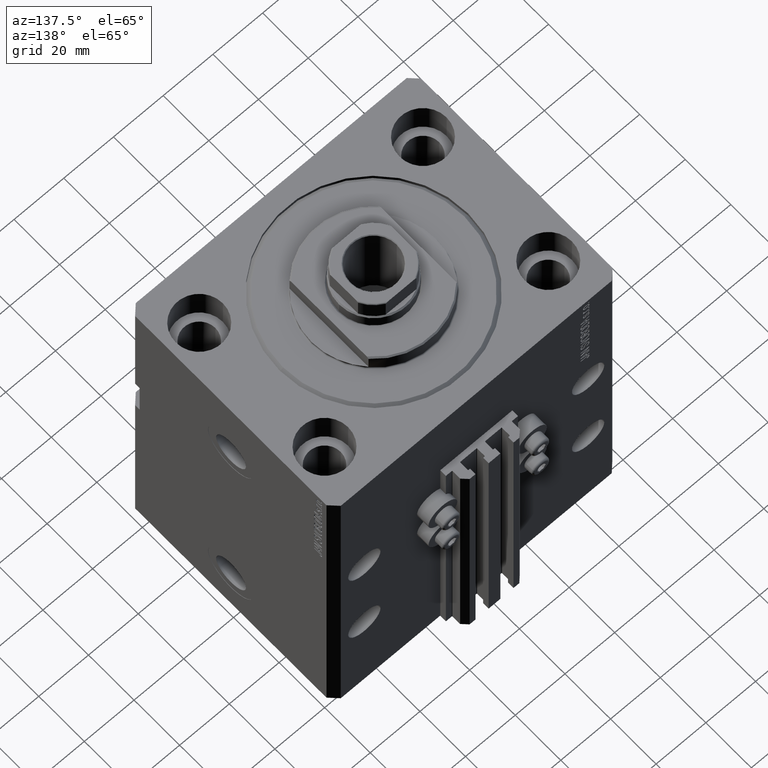
[diagram: clean part render]
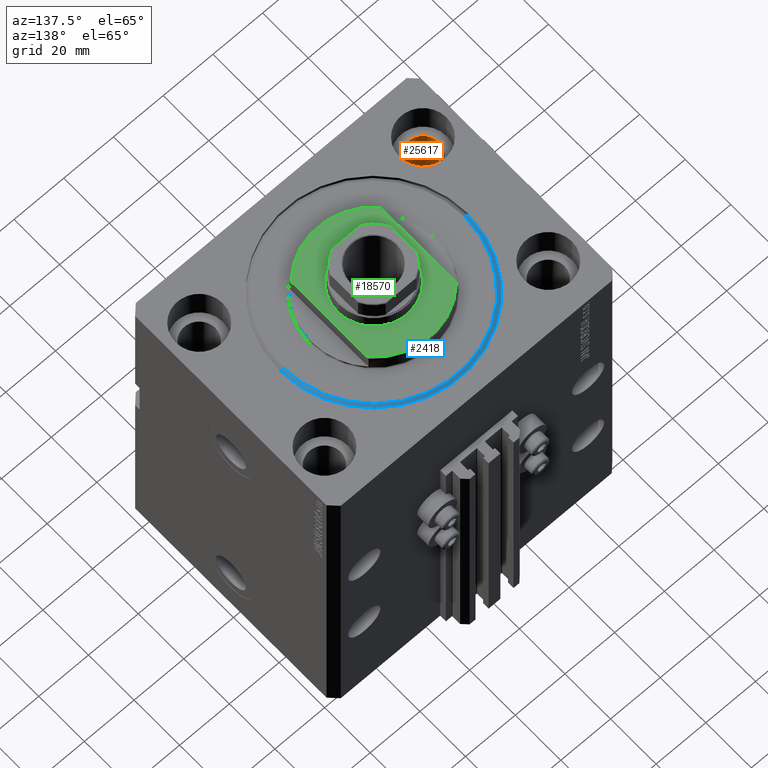
[diagram: same view with three faces highlighted in distinct colors, each labeled with its STEP entity id]
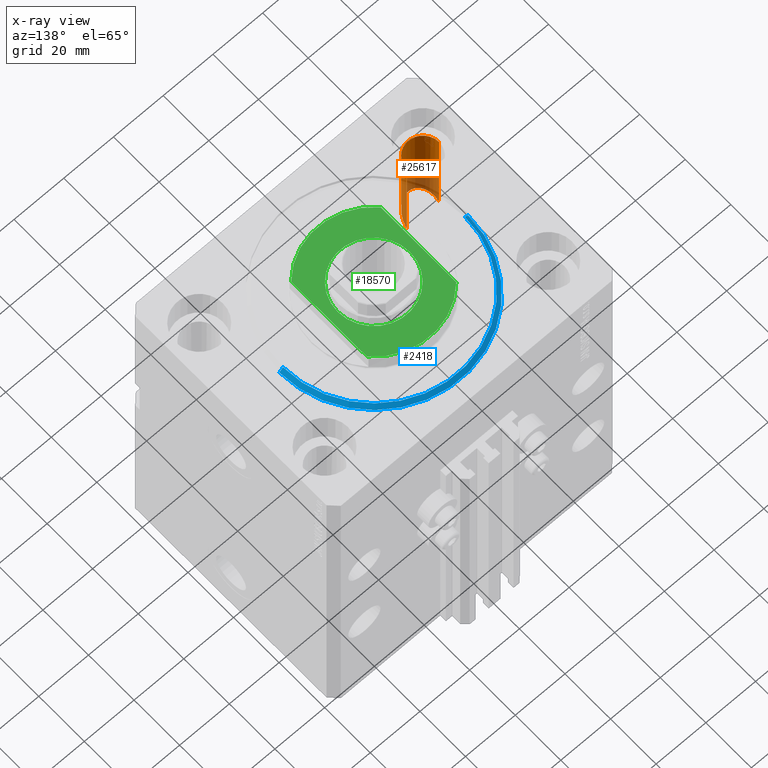
[diagram: x-ray of the same camera — body ghosted, the three highlighted faces saturated]
A machine part, auxiliary view with three faces highlighted in distinct colors.
The next image is the same camera in x-ray (body ghosted, the three faces saturated) — at least one of them is partly hidden behind the body in this view.
Their STEP definitions:

[orange] entity #25617 — the highlighted cylindrical surface (edge-blend (fillet) strip) has radius 6.5 mm, axis along (0, 0, 1).
#442 = VECTOR ( 'NONE', #36382, 1000.000000000000000 ) ;
#1325 = EDGE_CURVE ( 'NONE', #23469, #47725, #9370, .T. ) ;
#4446 = CARTESIAN_POINT ( 'NONE',  ( -51.50000000000000000, -27.49999999999999645, -13.00000000000000000 ) ) ;
#4931 = EDGE_CURVE ( 'NONE', #26999, #36131, #8403, .T. ) ;
#7403 = AXIS2_PLACEMENT_3D ( 'NONE', #21603, #48255, #47518 ) ;
#7873 = CARTESIAN_POINT ( 'NONE',  ( -51.49999999999999289, -27.49999999999999289, -55.00000000000002132 ) ) ;
#8285 = AXIS2_PLACEMENT_3D ( 'NONE', #40901, #49190, #29602 ) ;
#8403 = CIRCLE ( 'NONE', #8285, 6.499999999999999112 ) ;
#9062 = CYLINDRICAL_SURFACE ( 'NONE', #7403, 6.499999999999999112 ) ;
#9128 = LINE ( 'NONE', #36257, #38124 ) ;
#9370 =( BOUNDED_CURVE ( )  B_SPLINE_CURVE ( 3, ( #17068, #47756, #15665, #7873 ),
 .UNSPECIFIED., .F., .F. ) 
 B_SPLINE_CURVE_WITH_KNOTS ( ( 4, 4 ),
 ( 4.712388980384689674, 7.853981633974482790 ),
 .UNSPECIFIED. ) 
 CURVE ( )  GEOMETRIC_REPRESENTATION_ITEM ( )  RATIONAL_B_SPLINE_CURVE ( ( 1.000000000000000000, 0.3333333333333333703, 0.3333333333333333703, 1.000000000000000000 ) ) 
 REPRESENTATION_ITEM ( '' )  );
#15504 = ORIENTED_EDGE ( 'NONE', *, *, #37019, .T. ) ;
#15665 = CARTESIAN_POINT ( 'NONE',  ( -51.50000000000000000, -40.49999999999999289, -42.00000000000002132 ) ) ;
#17068 = CARTESIAN_POINT ( 'NONE',  ( -38.49999999999999289, -27.49999999999999289, -55.00000000000002132 ) ) ;
#18522 = ORIENTED_EDGE ( 'NONE', *, *, #4931, .T. ) ;
#21585 = CARTESIAN_POINT ( 'NONE',  ( -38.50000000000000000, -27.49999999999999645, -13.00000000000000000 ) ) ;
#21603 = CARTESIAN_POINT ( 'NONE',  ( -45.00000000000000000, -27.49999999999999645, -135.0000000000000000 ) ) ;
#23469 = VERTEX_POINT ( 'NONE', #34814 ) ;
#25064 = ORIENTED_EDGE ( 'NONE', *, *, #34809, .F. ) ;
#25617 = ADVANCED_FACE ( 'NONE', ( #32916 ), #9062, .F. ) ;
#26999 = VERTEX_POINT ( 'NONE', #4446 ) ;
#29602 = DIRECTION ( 'NONE',  ( 1.000000000000000000, 0.000000000000000000, 0.000000000000000000 ) ) ;
#31779 = ORIENTED_EDGE ( 'NONE', *, *, #1325, .T. ) ;
#32360 = CARTESIAN_POINT ( 'NONE',  ( -51.50000000000000000, -27.49999999999999645, -135.0000000000000000 ) ) ;
#32916 = FACE_OUTER_BOUND ( 'NONE', #39256, .T. ) ;
#34809 = EDGE_CURVE ( 'NONE', #23469, #36131, #9128, .T. ) ;
#34814 = CARTESIAN_POINT ( 'NONE',  ( -38.49999999999999289, -27.49999999999999289, -55.00000000000002132 ) ) ;
#36131 = VERTEX_POINT ( 'NONE', #21585 ) ;
#36257 = CARTESIAN_POINT ( 'NONE',  ( -38.50000000000000000, -27.49999999999999645, -135.0000000000000000 ) ) ;
#36382 = DIRECTION ( 'NONE',  ( -0.000000000000000000, -0.000000000000000000, 1.000000000000000000 ) ) ;
#37019 = EDGE_CURVE ( 'NONE', #47725, #26999, #40153, .T. ) ;
#38124 = VECTOR ( 'NONE', #47582, 1000.000000000000000 ) ;
#39256 = EDGE_LOOP ( 'NONE', ( #31779, #15504, #18522, #25064 ) ) ;
#40153 = LINE ( 'NONE', #32360, #442 ) ;
#40901 = CARTESIAN_POINT ( 'NONE',  ( -45.00000000000000000, -27.49999999999999645, -13.00000000000000000 ) ) ;
#45630 = CARTESIAN_POINT ( 'NONE',  ( -51.49999999999999289, -27.49999999999999289, -55.00000000000002132 ) ) ;
#47518 = DIRECTION ( 'NONE',  ( 1.000000000000000000, 0.000000000000000000, 0.000000000000000000 ) ) ;
#47582 = DIRECTION ( 'NONE',  ( -0.000000000000000000, -0.000000000000000000, 1.000000000000000000 ) ) ;
#47725 = VERTEX_POINT ( 'NONE', #45630 ) ;
#47756 = CARTESIAN_POINT ( 'NONE',  ( -38.49999999999998579, -40.49999999999998579, -42.00000000000002132 ) ) ;
#48255 = DIRECTION ( 'NONE',  ( -0.000000000000000000, -0.000000000000000000, 1.000000000000000000 ) ) ;
#49190 = DIRECTION ( 'NONE',  ( 0.000000000000000000, 0.000000000000000000, 1.000000000000000000 ) ) ;

[blue] entity #2418 — the highlighted conical surface has half-angle 45 deg.
#1921 = VERTEX_POINT ( 'NONE', #47636 ) ;
#2418 = ADVANCED_FACE ( 'NONE', ( #15108 ), #42815, .T. ) ;
#5427 = CARTESIAN_POINT ( 'NONE',  ( 0.000000000000000000, 0.000000000000000000, 0.000000000000000000 ) ) ;
#6747 = LINE ( 'NONE', #44961, #26379 ) ;
#7244 = DIRECTION ( 'NONE',  ( 0.7071067811865491270, 0.000000000000000000, 0.7071067811865459074 ) ) ;
#8216 = ORIENTED_EDGE ( 'NONE', *, *, #16766, .F. ) ;
#9500 = CARTESIAN_POINT ( 'NONE',  ( -38.00000000000000000, 0.000000000000000000, 1.499999999999994449 ) ) ;
#10012 = VERTEX_POINT ( 'NONE', #12934 ) ;
#11090 = CARTESIAN_POINT ( 'NONE',  ( 0.000000000000000000, 0.000000000000000000, 1.499999999999994449 ) ) ;
#12410 = VERTEX_POINT ( 'NONE', #9500 ) ;
#12934 = CARTESIAN_POINT ( 'NONE',  ( -36.50000000000000000, 4.561809326823889791E-15, 0.000000000000000000 ) ) ;
#13403 = ORIENTED_EDGE ( 'NONE', *, *, #30102, .F. ) ;
#13922 = DIRECTION ( 'NONE',  ( 1.000000000000000000, 0.000000000000000000, 0.000000000000000000 ) ) ;
#14861 = DIRECTION ( 'NONE',  ( -0.000000000000000000, -0.000000000000000000, 1.000000000000000000 ) ) ;
#15108 = FACE_OUTER_BOUND ( 'NONE', #26859, .T. ) ;
#15113 = VERTEX_POINT ( 'NONE', #44231 ) ;
#16389 = LINE ( 'NONE', #23435, #49455 ) ;
#16766 = EDGE_CURVE ( 'NONE', #15113, #1921, #6747, .T. ) ;
#20016 = DIRECTION ( 'NONE',  ( 1.000000000000000000, 0.000000000000000000, 0.000000000000000000 ) ) ;
#20751 = DIRECTION ( 'NONE',  ( -0.000000000000000000, -0.000000000000000000, -1.000000000000000000 ) ) ;
#21131 = AXIS2_PLACEMENT_3D ( 'NONE', #11090, #14861, #34460 ) ;
#23435 = CARTESIAN_POINT ( 'NONE',  ( -38.00000000000000000, 4.653657836759941941E-15, 1.499999999999994449 ) ) ;
#24272 = EDGE_CURVE ( 'NONE', #1921, #12410, #49098, .T. ) ;
#25260 = CARTESIAN_POINT ( 'NONE',  ( 0.000000000000000000, 0.000000000000000000, 1.499999999999994449 ) ) ;
#26379 = VECTOR ( 'NONE', #7244, 1000.000000000000114 ) ;
#26661 = AXIS2_PLACEMENT_3D ( 'NONE', #25260, #40818, #13922 ) ;
#26859 = EDGE_LOOP ( 'NONE', ( #13403, #26974, #39312, #8216 ) ) ;
#26974 = ORIENTED_EDGE ( 'NONE', *, *, #40833, .T. ) ;
#29086 = CIRCLE ( 'NONE', #45944, 36.50000000000000000 ) ;
#30102 = EDGE_CURVE ( 'NONE', #10012, #15113, #29086, .T. ) ;
#34460 = DIRECTION ( 'NONE',  ( 1.000000000000000000, 0.000000000000000000, 0.000000000000000000 ) ) ;
#39312 = ORIENTED_EDGE ( 'NONE', *, *, #24272, .F. ) ;
#40818 = DIRECTION ( 'NONE',  ( -0.000000000000000000, -0.000000000000000000, 1.000000000000000000 ) ) ;
#40833 = EDGE_CURVE ( 'NONE', #10012, #12410, #16389, .T. ) ;
#42815 = CONICAL_SURFACE ( 'NONE', #21131, 38.00000000000000000, 0.7853981633974506105 ) ;
#43045 = DIRECTION ( 'NONE',  ( -0.7071067811865491270, 8.659560562354953812E-17, 0.7071067811865459074 ) ) ;
#44231 = CARTESIAN_POINT ( 'NONE',  ( 36.50000000000000000, 0.000000000000000000, 0.000000000000000000 ) ) ;
#44961 = CARTESIAN_POINT ( 'NONE',  ( 38.00000000000000000, 0.000000000000000000, 1.499999999999994449 ) ) ;
#45944 = AXIS2_PLACEMENT_3D ( 'NONE', #5427, #20751, #20016 ) ;
#47636 = CARTESIAN_POINT ( 'NONE',  ( 38.00000000000000000, 4.653657836759941941E-15, 1.499999999999994449 ) ) ;
#49098 = CIRCLE ( 'NONE', #26661, 38.00000000000000000 ) ;
#49455 = VECTOR ( 'NONE', #43045, 1000.000000000000114 ) ;

[green] entity #18570 — the highlighted planar face has unit normal (0, 0, 1).
#119 = CARTESIAN_POINT ( 'NONE',  ( 18.00000000000000000, -41.24318125460256113, -7.000000000000000000 ) ) ;
#773 = CARTESIAN_POINT ( 'NONE',  ( 0.000000000000000000, 0.000000000000000000, -7.000000000000000000 ) ) ;
#5366 = CIRCLE ( 'NONE', #18198, 24.49999999999996803 ) ;
#5672 = EDGE_LOOP ( 'NONE', ( #41011, #40149 ) ) ;
#6171 = CARTESIAN_POINT ( 'NONE',  ( 18.00000000000000000, -16.62077013859462227, -7.000000000000000000 ) ) ;
#6339 = DIRECTION ( 'NONE',  ( -1.000000000000000000, 0.000000000000000000, 0.000000000000000000 ) ) ;
#6965 = DIRECTION ( 'NONE',  ( -0.000000000000000000, -0.000000000000000000, 1.000000000000000000 ) ) ;
#7875 = VERTEX_POINT ( 'NONE', #47936 ) ;
#8541 = CARTESIAN_POINT ( 'NONE',  ( 14.50000000000001243, 1.775737858763663987E-15, -7.000000000000000000 ) ) ;
#9570 = AXIS2_PLACEMENT_3D ( 'NONE', #773, #16618, #15879 ) ;
#10867 = AXIS2_PLACEMENT_3D ( 'NONE', #44777, #32723, #17867 ) ;
#10957 = EDGE_CURVE ( 'NONE', #7875, #15686, #30143, .T. ) ;
#11503 = DIRECTION ( 'NONE',  ( -0.000000000000000000, -1.000000000000000000, -0.000000000000000000 ) ) ;
#13077 = VECTOR ( 'NONE', #47076, 1000.000000000000000 ) ;
#13327 = VERTEX_POINT ( 'NONE', #18027 ) ;
#14752 = CARTESIAN_POINT ( 'NONE',  ( 0.000000000000000000, 0.000000000000000000, -7.000000000000000000 ) ) ;
#15686 = VERTEX_POINT ( 'NONE', #48870 ) ;
#15879 = DIRECTION ( 'NONE',  ( -1.000000000000000000, 0.000000000000000000, -0.000000000000000000 ) ) ;
#16618 = DIRECTION ( 'NONE',  ( 0.000000000000000000, 0.000000000000000000, -1.000000000000000000 ) ) ;
#16882 = AXIS2_PLACEMENT_3D ( 'NONE', #18941, #30505, #45831 ) ;
#17138 = EDGE_LOOP ( 'NONE', ( #28639, #43848, #34825, #17347 ) ) ;
#17347 = ORIENTED_EDGE ( 'NONE', *, *, #23127, .F. ) ;
#17867 = DIRECTION ( 'NONE',  ( -1.000000000000000000, 0.000000000000000000, 0.000000000000000000 ) ) ;
#18027 = CARTESIAN_POINT ( 'NONE',  ( -18.00000000000000000, -16.62077013859462227, -7.000000000000000000 ) ) ;
#18198 = AXIS2_PLACEMENT_3D ( 'NONE', #30226, #40791, #6339 ) ;
#18534 = CARTESIAN_POINT ( 'NONE',  ( -18.00000000000000000, -41.24318125460256113, -7.000000000000000000 ) ) ;
#18570 = ADVANCED_FACE ( 'NONE', ( #34227, #26705 ), #23918, .T. ) ;
#18941 = CARTESIAN_POINT ( 'NONE',  ( 0.000000000000000000, 0.000000000000000000, -7.000000000000000000 ) ) ;
#21385 = EDGE_CURVE ( 'NONE', #27819, #49195, #30530, .T. ) ;
#21795 = DIRECTION ( 'NONE',  ( -1.000000000000000000, 0.000000000000000000, 0.000000000000000000 ) ) ;
#23127 = EDGE_CURVE ( 'NONE', #7875, #13327, #45940, .T. ) ;
#23918 = PLANE ( 'NONE',  #9570 ) ;
#24179 = VECTOR ( 'NONE', #11503, 1000.000000000000000 ) ;
#25106 = CIRCLE ( 'NONE', #35545, 14.50000000000001421 ) ;
#26705 = FACE_OUTER_BOUND ( 'NONE', #17138, .T. ) ;
#26796 = EDGE_CURVE ( 'NONE', #49195, #27819, #25106, .T. ) ;
#27819 = VERTEX_POINT ( 'NONE', #8541 ) ;
#28639 = ORIENTED_EDGE ( 'NONE', *, *, #10957, .T. ) ;
#30143 = CIRCLE ( 'NONE', #10867, 24.49999999999996803 ) ;
#30226 = CARTESIAN_POINT ( 'NONE',  ( 0.000000000000000000, 0.000000000000000000, -7.000000000000000000 ) ) ;
#30505 = DIRECTION ( 'NONE',  ( -0.000000000000000000, -0.000000000000000000, 1.000000000000000000 ) ) ;
#30530 = CIRCLE ( 'NONE', #16882, 14.50000000000001421 ) ;
#32446 = VERTEX_POINT ( 'NONE', #6171 ) ;
#32723 = DIRECTION ( 'NONE',  ( 0.000000000000000000, 0.000000000000000000, -1.000000000000000000 ) ) ;
#34227 = FACE_BOUND ( 'NONE', #5672, .T. ) ;
#34825 = ORIENTED_EDGE ( 'NONE', *, *, #39092, .T. ) ;
#35545 = AXIS2_PLACEMENT_3D ( 'NONE', #14752, #6965, #21795 ) ;
#39092 = EDGE_CURVE ( 'NONE', #32446, #13327, #5366, .T. ) ;
#40149 = ORIENTED_EDGE ( 'NONE', *, *, #21385, .T. ) ;
#40791 = DIRECTION ( 'NONE',  ( 0.000000000000000000, 0.000000000000000000, -1.000000000000000000 ) ) ;
#41011 = ORIENTED_EDGE ( 'NONE', *, *, #26796, .T. ) ;
#42368 = CARTESIAN_POINT ( 'NONE',  ( -14.50000000000001243, 0.000000000000000000, -7.000000000000000000 ) ) ;
#43848 = ORIENTED_EDGE ( 'NONE', *, *, #49215, .T. ) ;
#44777 = CARTESIAN_POINT ( 'NONE',  ( 0.000000000000000000, 0.000000000000000000, -7.000000000000000000 ) ) ;
#45831 = DIRECTION ( 'NONE',  ( -1.000000000000000000, 0.000000000000000000, 0.000000000000000000 ) ) ;
#45940 = LINE ( 'NONE', #18534, #24179 ) ;
#47076 = DIRECTION ( 'NONE',  ( 0.000000000000000000, -1.000000000000000000, -0.000000000000000000 ) ) ;
#47936 = CARTESIAN_POINT ( 'NONE',  ( -18.00000000000000000, 16.62077013859462227, -7.000000000000000000 ) ) ;
#48870 = CARTESIAN_POINT ( 'NONE',  ( 18.00000000000000000, 16.62077013859462227, -7.000000000000000000 ) ) ;
#49195 = VERTEX_POINT ( 'NONE', #42368 ) ;
#49215 = EDGE_CURVE ( 'NONE', #15686, #32446, #49662, .T. ) ;
#49662 = LINE ( 'NONE', #119, #13077 ) ;